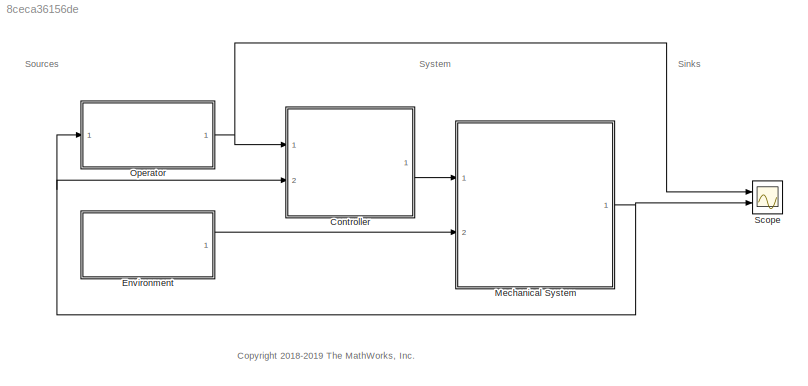
MODEL slx_8ceca36156de
KIND model
CONFIG AbsTol = auto
CONFIG EnableMultiTasking = off
CONFIG FixedStep = auto
CONFIG MaxStep = auto
CONFIG MinStep = auto
CONFIG RelTol = 1e-3
CONFIG SampleTimeConstraint = Unconstrained
CONFIG Solver = VariableStepAuto
CONFIG SolverName = VariableStepAuto
CONFIG StartTime = 0.0
CONFIG StopTime = 10.0
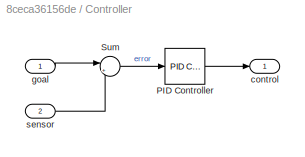
BLOCK [SubSystem] Controller
  Ports = [2, 1]
  RequestExecContextInheritance = off
  TreatAsAtomicUnit = on
BLOCK [Reference] Controller/PID Controller  REF=simulink/Continuous/PID Controller
  Ports = [1, 1]
  SourceBlock = simulink/Continuous/PID Controller
  SourceProductBaseCode = SL
  SourceType = PID 1dof
BLOCK [Sum] Controller/Sum
  Inputs = |+-
  Ports = [2, 1]
BLOCK [Outport] Controller/control
  VectorParamsAs1DForOutWhenUnconnected = off
BLOCK [Inport] Controller/goal
BLOCK [Inport] Controller/sensor
  Port = 2
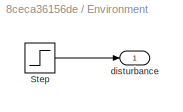
BLOCK [SubSystem] Environment
  Ports = [0, 1]
  RequestExecContextInheritance = off
BLOCK [Step] Environment/Step
  After = 10
  SampleTime = 0
  Time = 5
BLOCK [Outport] Environment/disturbance
  VectorParamsAs1DForOutWhenUnconnected = off
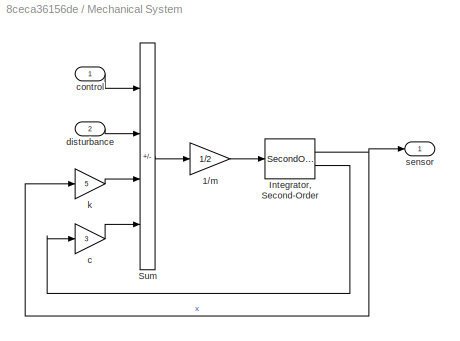
BLOCK [SubSystem] Mechanical System
  Ports = [2, 1]
  RequestExecContextInheritance = off
BLOCK [Gain] Mechanical System/1//m
  Gain = 1/2
BLOCK [SecondOrderIntegrator] Mechanical System/Integrator, Second-Order
  Ports = [1, 2]
BLOCK [Sum] Mechanical System/Sum
  IconShape = rectangular
  Inputs = ++--
  Ports = [4, 1]
BLOCK [Gain] Mechanical System/c
  Gain = 3
BLOCK [Inport] Mechanical System/control
BLOCK [Inport] Mechanical System/disturbance
  Port = 2
BLOCK [Gain] Mechanical System/k
  Gain = 5
BLOCK [Outport] Mechanical System/sensor
  VectorParamsAs1DForOutWhenUnconnected = off
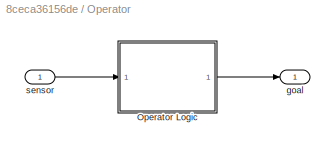
BLOCK [SubSystem] Operator
  Ports = [1, 1]
  RequestExecContextInheritance = off
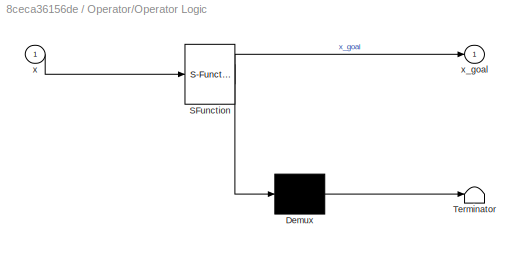
BLOCK [SubSystem] Operator/Operator Logic
  ErrorFcn = Stateflow.Translate.translate
  PermitHierarchicalResolution = ExplicitOnly
  Ports = [1, 1]
  RequestExecContextInheritance = off
  SFBlockType = Chart
  TreatAsAtomicUnit = on
BLOCK [Demux] Operator/Operator Logic/ Demux 
  Outputs = 1
  Ports = [1, 1]
BLOCK [S-Function] Operator/Operator Logic/ SFunction 
  EnableBusSupport = off
  FunctionName = sf_sfun
  PortCounts = [1 2]
  Ports = [1, 2]
  SFcnIsStateOwnerBlock = off
  SFunctionDeploymentMode = off
  Tag = Stateflow S-Function 3
BLOCK [Terminator] Operator/Operator Logic/ Terminator 
BLOCK [Inport] Operator/Operator Logic/x
BLOCK [Outport] Operator/Operator Logic/x_goal
  VectorParamsAs1DForOutWhenUnconnected = off
BLOCK [Outport] Operator/goal
  VectorParamsAs1DForOutWhenUnconnected = off
BLOCK [Inport] Operator/sensor
BLOCK [Scope] Scope
  Floating = off
  NumInputPorts = 2
  Ports = [2]
  ScopeSpecificationString = Simulink.scopes.TimeScopeBlockCfg('CurrentConfiguration', extmgr.ConfigurationSet(extmgr.Configuration('Core','General UI',true,'FigureColor',[1 1 1]),extmgr.Configuration('Core','Source UI',true),extmgr.Configuration('Sources','WiredSimulink',true),extmgr.Configuration('Visuals','Time Domain',true,'SerializedDisplays',{struct('MinYLimReal','-0.25581','MaxYLimReal','2.30227','YLabelReal','','MinYL...<+1513ch>
ANNOTATION (root): <copyright redacted>
ANNOTATION (root): Sinks
ANNOTATION (root): Sources
ANNOTATION (root): System
LINE Controller/PID Controller:1 -> Controller/control:1
LINE Controller/Sum:1 -> Controller/PID Controller:1
LINE Controller/goal:1 -> Controller/Sum:1
LINE Controller/sensor:1 -> Controller/Sum:2
LINE Controller:1 -> Mechanical System:1
LINE Environment/Step:1 -> Environment/disturbance:1
LINE Environment:1 -> Mechanical System:2
LINE Mechanical System/1//m:1 -> Mechanical System/Integrator, Second-Order:1
NET Mechanical System/Integrator, Second-Order:1 -> Mechanical System/k:1, Mechanical System/sensor:1
LINE Mechanical System/Integrator, Second-Order:2 -> Mechanical System/c:1
LINE Mechanical System/Sum:1 -> Mechanical System/1//m:1
LINE Mechanical System/c:1 -> Mechanical System/Sum:4
LINE Mechanical System/control:1 -> Mechanical System/Sum:1
LINE Mechanical System/disturbance:1 -> Mechanical System/Sum:2
LINE Mechanical System/k:1 -> Mechanical System/Sum:3
NET Mechanical System:1 -> Controller:2, Operator:1, Scope:2
LINE Operator/Operator Logic:1 -> Operator/goal:1
LINE Operator/sensor:1 -> Operator/Operator Logic:1
NET Operator:1 -> Controller:1, Scope:1
note: NET lines group one-source signal fan-out (src -> all destinations, sorted); 1:1 wires keep LINE
CHART Operator/Operator Logic states=3 transitions=3
  STATE_LABEL 'wait\nentry: x_goal = 0;'
  STATE_LABEL 'FirstOperation\nentry: x_goal = 2;'
  STATE_LABEL 'SecondOperation\nentry: x_goal = 1;'
CHART  states=0 transitions=0
